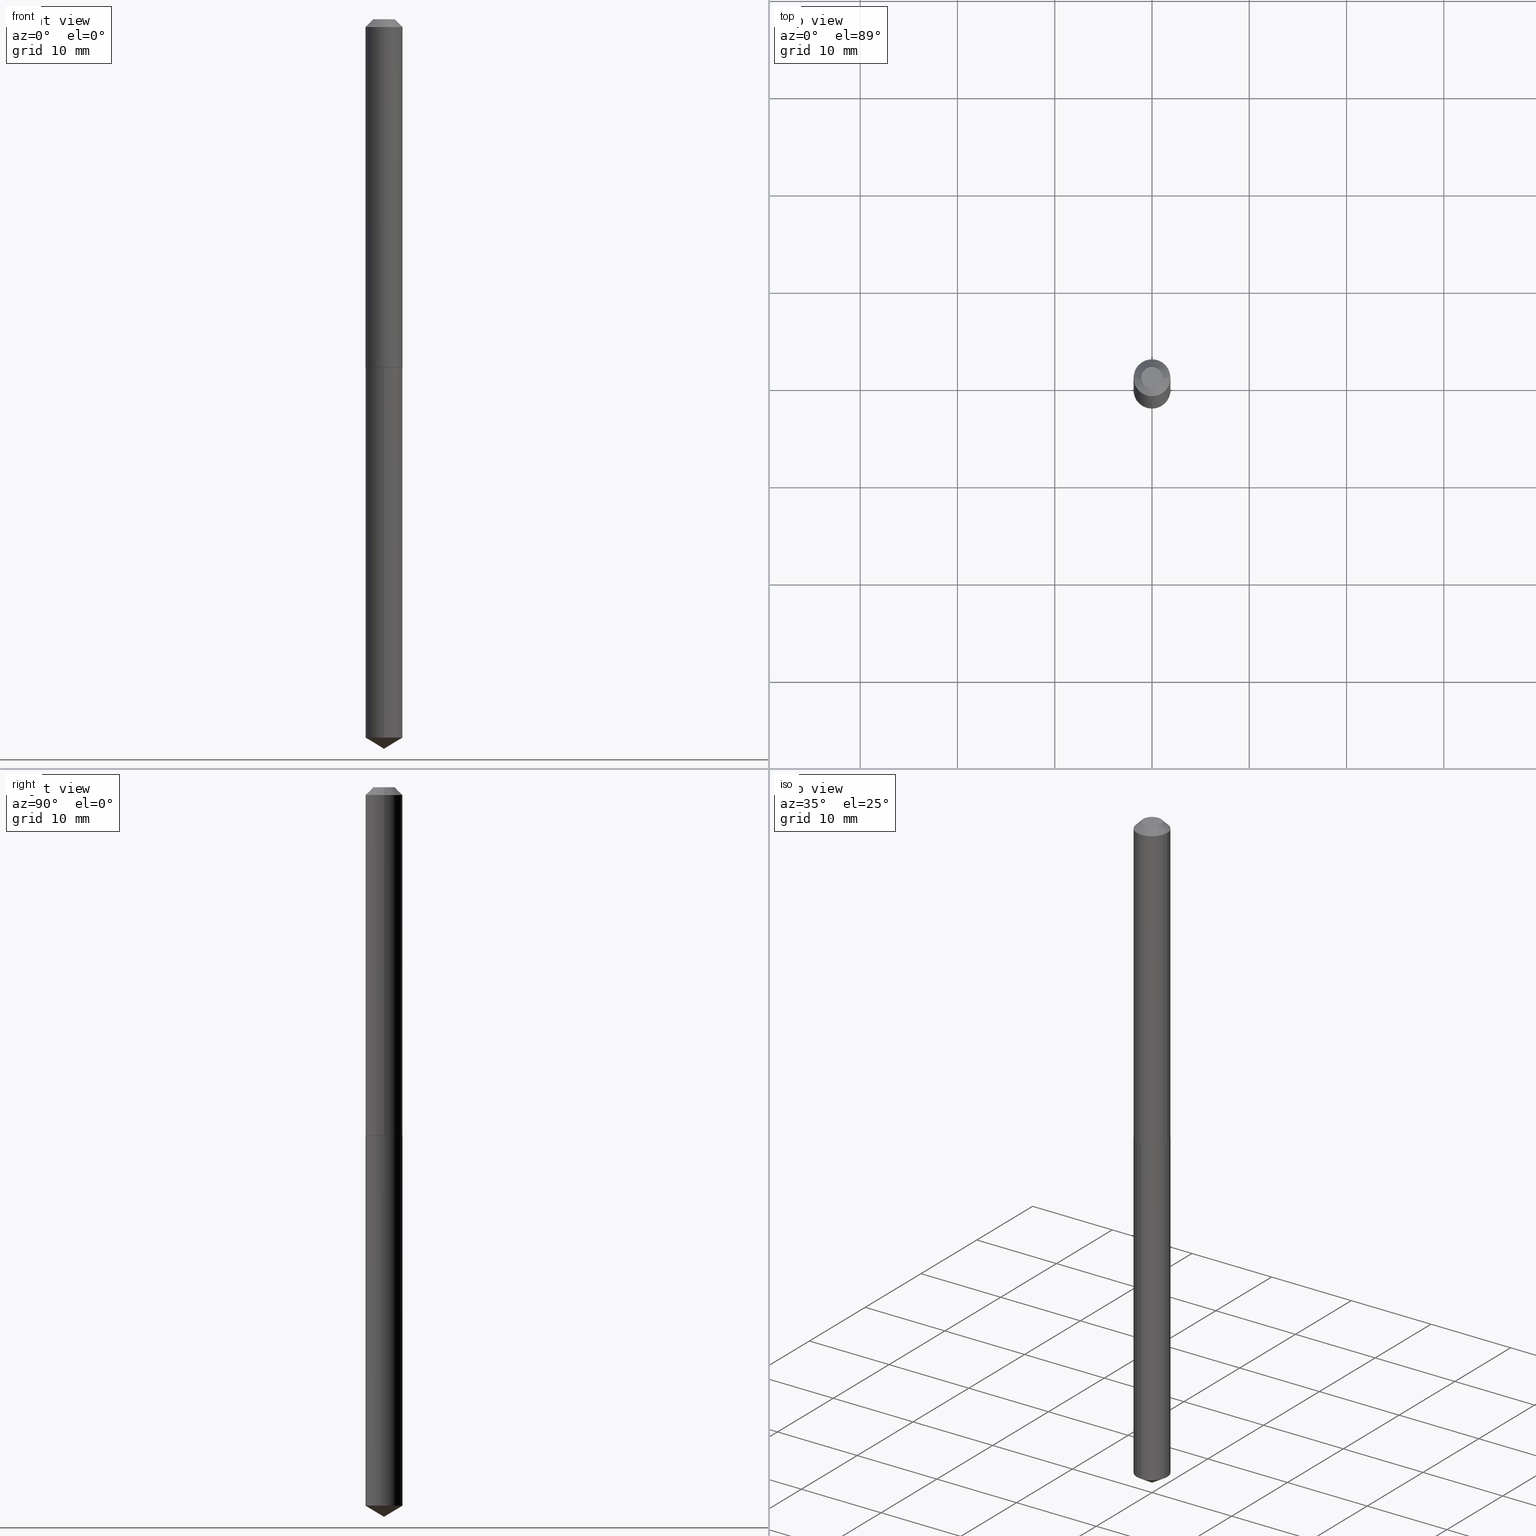
[diagram: canonical four-view strip — front | top / right | iso, engineering-drawing reading convention]
A machine part, canonical four-view strip (front | top / right | iso — engineering-drawing reading convention). The complete STEP part file that produces these views, byte-faithful:
ISO-10303-21;
HEADER;
FILE_DESCRIPTION (( 'STEP AP203' ),
    '1' );
FILE_NAME ('61074.STEP',
    '2024-04-23T03:15:50',
    ( '' ),
    ( '' ),
    'SwSTEP 2.0',
    'SolidWorks 2023',
    '' );
FILE_SCHEMA (( 'CONFIG_CONTROL_DESIGN' ));
ENDSEC;

DATA;
#1 = DIRECTION ( 'NONE',  ( -2.445468806185136597E-29, 3.491481338843145583E-15, 1.000000000000000000 ) ) ;
#2 = VECTOR ( 'NONE', #390, 39.37007874015748143 ) ;
#3 = DIRECTION ( 'NONE',  ( -2.445501550165769556E-29, 3.491434447599207546E-15, 1.000000000000000000 ) ) ;
#4 = FACE_OUTER_BOUND ( 'NONE', #228, .T. ) ;
#5 = CARTESIAN_POINT ( 'NONE',  ( 0.07480000000000018578, -5.441822814720925495E-15, -1.408999999999999586 ) ) ;
#6 = CONICAL_SURFACE ( 'NONE', #166, 65.52281426576737999, 1.029744258676647428 ) ;
#7 = CARTESIAN_POINT ( 'NONE',  ( 7.220984672048079038E-29, -1.030963982328759918E-14, -2.952799999999999869 ) ) ;
#8 = DIRECTION ( 'NONE',  ( -2.445468806185136597E-29, 3.491481338843145583E-15, 1.000000000000000000 ) ) ;
#9 = ADVANCED_FACE ( 'NONE', ( #96 ), #6, .T. ) ;
#10 = APPROVAL_STATUS ( 'not_yet_approved' ) ;
#11 = DIRECTION ( 'NONE',  ( -6.982962677686266711E-15, -1.000000000000000000, 3.468864327941649829E-15 ) ) ;
#12 = ORIENTED_EDGE ( 'NONE', *, *, #45, .T. ) ;
#13 = APPROVAL_DATE_TIME ( #223, #148 ) ;
#14 = ORIENTED_EDGE ( 'NONE', *, *, #270, .T. ) ;
#15 = ADVANCED_FACE ( 'NONE', ( #251 ), #277, .T. ) ;
#16 = CLOSED_SHELL ( 'NONE', ( #218, #259, #9, #366, #234 ) ) ;
#17 = CALENDAR_DATE ( 2024, 22, 4 ) ;
#18 = APPROVAL_PERSON_ORGANIZATION ( #100, #148, #283 ) ;
#19 = AXIS2_PLACEMENT_3D ( 'NONE', #356, #363, #93 ) ;
#20 = ORIENTED_EDGE ( 'NONE', *, *, #82, .F. ) ;
#21 = APPROVAL_ROLE ( '' ) ;
#22 = VERTEX_POINT ( 'NONE', #141 ) ;
#23 = FACE_OUTER_BOUND ( 'NONE', #317, .T. ) ;
#24 = EDGE_CURVE ( 'NONE', #134, #37, #386, .T. ) ;
#25 = DIRECTION ( 'NONE',  ( 1.000000000000000000, -6.982962677686271444E-15, 0.000000000000000000 ) ) ;
#26 = CONICAL_SURFACE ( 'NONE', #304, 0.07480000000000018578, 0.7853981633971067744 ) ;
#27 = CARTESIAN_POINT ( 'NONE',  ( 7.642090019328601786E-31, -1.091087918388490144E-16, -0.03125000000000020123 ) ) ;
#28 = DIRECTION ( 'NONE',  ( -0.7071067811865452413, 2.468850131082233000E-15, -0.7071067811865497932 ) ) ;
#29 = DIRECTION ( 'NONE',  ( 2.445468806185136597E-29, -3.491481338843145583E-15, -1.000000000000000000 ) ) ;
#30 = CC_DESIGN_SECURITY_CLASSIFICATION ( #288, ( #238 ) ) ;
#31 = CARTESIAN_POINT ( 'NONE',  ( 0.000000000000000000, 0.000000000000000000, 0.000000000000000000 ) ) ;
#32 = CARTESIAN_POINT ( 'NONE',  ( -0.04355000000000000537, 3.586624205326602835E-16, 2.388061258314161351E-19 ) ) ;
#33 = DESIGN_CONTEXT ( 'detailed design', #163, 'design' ) ;
#34 = PLANE ( 'NONE',  #333 ) ;
#35 = LOCAL_TIME ( 23, 15, 50.00000000000000000, #250 ) ;
#36 = FACE_OUTER_BOUND ( 'NONE', #307, .T. ) ;
#37 = VERTEX_POINT ( 'NONE', #353 ) ;
#38 = DIRECTION ( 'NONE',  ( -2.445501550165769556E-29, 3.491434447599207546E-15, 1.000000000000000000 ) ) ;
#39 = CARTESIAN_POINT ( 'NONE',  ( 3.446888282317949867E-29, -4.921242947099413409E-15, -1.409499999999999753 ) ) ;
#40 = EDGE_CURVE ( 'NONE', #209, #134, #263, .T. ) ;
#41 = ORIENTED_EDGE ( 'NONE', *, *, #132, .T. ) ;
#42 = ORIENTED_EDGE ( 'NONE', *, *, #268, .T. ) ;
#43 = DIRECTION ( 'NONE',  ( -6.982962677686265922E-15, -1.000000000000000000, 3.652203200085913934E-15 ) ) ;
#44 = ORIENTED_EDGE ( 'NONE', *, *, #364, .T. ) ;
#45 = EDGE_CURVE ( 'NONE', #344, #37, #171, .T. ) ;
#46 = PERSON_AND_ORGANIZATION ( #189, #232 ) ;
#47 = ORIENTED_EDGE ( 'NONE', *, *, #301, .F. ) ;
#48 = CIRCLE ( 'NONE', #173, 0.07480000000000018578 ) ;
#49 = PERSON_AND_ORGANIZATION_ROLE ( 'classification_officer' ) ;
#50 = CC_DESIGN_APPROVAL ( #215, ( #238 ) ) ;
#51 = ORIENTED_EDGE ( 'NONE', *, *, #270, .F. ) ;
#52 = DIRECTION ( 'NONE',  ( 1.000000000000000000, -6.982962677686271444E-15, 0.000000000000000000 ) ) ;
#53 = EDGE_CURVE ( 'NONE', #193, #134, #350, .T. ) ;
#54 = DIRECTION ( 'NONE',  ( -2.445468806185136597E-29, 3.491481338843145583E-15, 1.000000000000000000 ) ) ;
#55 = CARTESIAN_POINT ( 'NONE',  ( -0.07480000000000000537, 4.132168164520837491E-16, -0.03125000000000020123 ) ) ;
#56 = CARTESIAN_POINT ( 'NONE',  ( 7.642090019328601786E-31, -1.091087918388490144E-16, -0.03125000000000020123 ) ) ;
#57 = DIRECTION ( 'NONE',  ( -6.982962677686265922E-15, -1.000000000000000000, 3.652203200085913145E-15 ) ) ;
#58 = EDGE_CURVE ( 'NONE', #380, #140, #114, .T. ) ;
#59 = DIRECTION ( 'NONE',  ( -5.985567269335916825E-15, -0.8571673007021067825, 0.5150380749100631483 ) ) ;
#60 = VECTOR ( 'NONE', #180, 39.37007874015748143 ) ;
#61 = LINE ( 'NONE', #87, #369 ) ;
#62 = EDGE_CURVE ( 'NONE', #37, #134, #109, .T. ) ;
#63 = DIRECTION ( 'NONE',  ( 6.982962677686265922E-15, 1.000000000000000000, -3.491434447599207546E-15 ) ) ;
#64 = CYLINDRICAL_SURFACE ( 'NONE', #217, 0.07479999999999999150 ) ;
#65 = EDGE_LOOP ( 'NONE', ( #47, #338, #152 ) ) ;
#66 = DIRECTION ( 'NONE',  ( 1.000000000000000000, -6.982962677686265922E-15, 4.876176775795935232E-29 ) ) ;
#67 = PERSON_AND_ORGANIZATION_ROLE ( 'creator' ) ;
#68 = VERTEX_POINT ( 'NONE', #264 ) ;
#69 = DATE_AND_TIME ( #17, #71 ) ;
#70 = ORIENTED_EDGE ( 'NONE', *, *, #128, .T. ) ;
#71 = LOCAL_TIME ( 23, 15, 50.00000000000000000, #97 ) ;
#72 = VERTEX_POINT ( 'NONE', #385 ) ;
#73 = COORDINATED_UNIVERSAL_TIME_OFFSET ( 5, 0, .BEHIND. ) ;
#74 = ORIENTED_EDGE ( 'NONE', *, *, #125, .T. ) ;
#75 = PERSON_AND_ORGANIZATION_ROLE ( 'creator' ) ;
#76 = ORIENTED_EDGE ( 'NONE', *, *, #364, .F. ) ;
#77 = COORDINATED_UNIVERSAL_TIME_OFFSET ( 5, 0, .BEHIND. ) ;
#78 = AXIS2_PLACEMENT_3D ( 'NONE', #176, #1, #239 ) ;
#79 = CARTESIAN_POINT ( 'NONE',  ( 7.642090019328601786E-31, -1.091087918388490144E-16, -0.03125000000000020123 ) ) ;
#80 = DIRECTION ( 'NONE',  ( -2.445501550165769556E-29, 3.491434447599207546E-15, 1.000000000000000000 ) ) ;
#81 = DIRECTION ( 'NONE',  ( -2.445468806185136597E-29, 3.491481338843145583E-15, 1.000000000000000000 ) ) ;
#82 = EDGE_CURVE ( 'NONE', #22, #209, #319, .T. ) ;
#83 = AXIS2_PLACEMENT_3D ( 'NONE', #208, #187, #243 ) ;
#84 = DIRECTION ( 'NONE',  ( 1.000000000000000000, -6.982962677686261189E-15, 0.000000000000000000 ) ) ;
#85 = PRODUCT_RELATED_PRODUCT_CATEGORY ( 'detail', '', ( #354 ) ) ;
#86 = CYLINDRICAL_SURFACE ( 'NONE', #361, 0.07479999999999999150 ) ;
#87 = CARTESIAN_POINT ( 'NONE',  ( 0.07480000000000000537, -6.222740420721597243E-16, -0.03125000000000020123 ) ) ;
#88 = CIRCLE ( 'NONE', #102, 0.07430000000000035187 ) ;
#89 = AXIS2_PLACEMENT_3D ( 'NONE', #292, #81, #207 ) ;
#90 = CC_DESIGN_DATE_AND_TIME_ASSIGNMENT ( #376, #196, ( #153 ) ) ;
#91 = LINE ( 'NONE', #7, #318 ) ;
#92 = DIRECTION ( 'NONE',  ( -6.982962677686265922E-15, -1.000000000000000000, 0.000000000000000000 ) ) ;
#93 = DIRECTION ( 'NONE',  ( -1.000000000000000000, 6.982962677686265922E-15, -4.876176775795935793E-29 ) ) ;
#94 = CALENDAR_DATE ( 2024, 22, 4 ) ;
#95 = APPROVAL_ROLE ( '' ) ;
#96 = FACE_OUTER_BOUND ( 'NONE', #65, .T. ) ;
#97 = COORDINATED_UNIVERSAL_TIME_OFFSET ( 5, 0, .BEHIND. ) ;
#98 = EDGE_LOOP ( 'NONE', ( #291, #275, #190, #101 ) ) ;
#99 = EDGE_CURVE ( 'NONE', #344, #209, #48, .T. ) ;
#100 = PERSON_AND_ORGANIZATION ( #189, #232 ) ;
#101 = ORIENTED_EDGE ( 'NONE', *, *, #268, .F. ) ;
#102 = AXIS2_PLACEMENT_3D ( 'NONE', #170, #235, #84 ) ;
#103 = AXIS2_PLACEMENT_3D ( 'NONE', #216, #178, #92 ) ;
#104 = ORIENTED_EDGE ( 'NONE', *, *, #58, .F. ) ;
#105 = ORIENTED_EDGE ( 'NONE', *, *, #213, .T. ) ;
#106 = DATE_AND_TIME ( #381, #295 ) ;
#107 = DIRECTION ( 'NONE',  ( 1.000000000000000000, -6.982962677686271444E-15, 0.000000000000000000 ) ) ;
#108 = ADVANCED_FACE ( 'NONE', ( #111 ), #271, .T. ) ;
#109 = CIRCLE ( 'NONE', #368, 0.07480000000000000537 ) ;
#110 = CC_DESIGN_APPROVAL ( #148, ( #153 ) ) ;
#111 = FACE_OUTER_BOUND ( 'NONE', #98, .T. ) ;
#112 = MANIFOLD_SOLID_BREP ( 'Body-Move/Copy2[2]', #377 ) ;
#113 = CARTESIAN_POINT ( 'NONE',  ( 3.445665547914856505E-29, -4.919497206429991117E-15, -1.408999999999999586 ) ) ;
#114 = LINE ( 'NONE', #202, #144 ) ;
#115 = CARTESIAN_POINT ( 'NONE',  ( -5.223256082908982878E-16, -0.07480000000000491811, -1.409499999999999309 ) ) ;
#116 = AXIS2_PLACEMENT_3D ( 'NONE', #119, #8, #66 ) ;
#117 = PRODUCT_DEFINITION_SHAPE ( 'NONE', 'NONE',  #153 ) ;
#118 = LINE ( 'NONE', #305, #126 ) ;
#119 = CARTESIAN_POINT ( 'NONE',  ( 0.000000000000000000, 0.000000000000000000, 0.000000000000000000 ) ) ;
#120 = EDGE_LOOP ( 'NONE', ( #222, #336 ) ) ;
#121 = DIRECTION ( 'NONE',  ( -2.445468806185136597E-29, 3.491481338843145583E-15, 1.000000000000000000 ) ) ;
#122 = APPROVAL_PERSON_ORGANIZATION ( #139, #241, #21 ) ;
#123 = CARTESIAN_POINT ( 'NONE',  ( 3.446888282317949307E-29, -4.921242947099412620E-15, -1.409499999999999531 ) ) ;
#124 = DIRECTION ( 'NONE',  ( -2.445468806185136597E-29, 3.491481338843145583E-15, 1.000000000000000000 ) ) ;
#125 = EDGE_CURVE ( 'NONE', #209, #344, #347, .T. ) ;
#126 = VECTOR ( 'NONE', #362, 39.37007874015748143 ) ;
#127 = ORIENTED_EDGE ( 'NONE', *, *, #24, .T. ) ;
#128 = EDGE_CURVE ( 'NONE', #22, #312, #88, .T. ) ;
#129 = SHAPE_DEFINITION_REPRESENTATION ( #117, #357 ) ;
#130 = DIRECTION ( 'NONE',  ( 0.000000000000000000, 0.000000000000000000, 1.000000000000000000 ) ) ;
#131 = ORIENTED_EDGE ( 'NONE', *, *, #53, .T. ) ;
#132 = EDGE_CURVE ( 'NONE', #162, #140, #352, .T. ) ;
#133 = APPLICATION_PROTOCOL_DEFINITION ( 'international standard', 'config_control_design', 1994, #163 ) ;
#134 = VERTEX_POINT ( 'NONE', #323 ) ;
#135 = VECTOR ( 'NONE', #28, 39.37007874015748143 ) ;
#136 = VECTOR ( 'NONE', #269, 39.37007874015748143 ) ;
#137 = DIRECTION ( 'NONE',  ( 1.000000000000000000, -6.982962677686265922E-15, 4.876176775795935793E-29 ) ) ;
#138 = VERTEX_POINT ( 'NONE', #351 ) ;
#139 = PERSON_AND_ORGANIZATION ( #189, #232 ) ;
#140 = VERTEX_POINT ( 'NONE', #204 ) ;
#141 = CARTESIAN_POINT ( 'NONE',  ( -0.07430000000000035187, -4.390660467255545171E-15, -1.409499999999999753 ) ) ;
#142 = AXIS2_PLACEMENT_3D ( 'NONE', #147, #181, #212 ) ;
#143 = CARTESIAN_POINT ( 'NONE',  ( 7.642090019328601786E-31, -1.091087918388490144E-16, -0.03125000000000020123 ) ) ;
#144 = VECTOR ( 'NONE', #262, 39.37007874015748143 ) ;
#145 = DIRECTION ( 'NONE',  ( -2.445468806185136597E-29, 3.491481338843145583E-15, 1.000000000000000000 ) ) ;
#146 = DIMENSIONAL_EXPONENTS ( 1.000000000000000000, 0.000000000000000000, 0.000000000000000000, 0.000000000000000000, 0.000000000000000000, 0.000000000000000000, 0.000000000000000000 ) ;
#147 = CARTESIAN_POINT ( 'NONE',  ( 3.446888282317949307E-29, -4.921242947099412620E-15, -1.409499999999999531 ) ) ;
#148 = APPROVAL ( #10, 'UNSPECIFIED' ) ;
#149 = DIRECTION ( 'NONE',  ( 2.445501550165769276E-29, -3.491434447599207546E-15, -1.000000000000000000 ) ) ;
#150 = LINE ( 'NONE', #5, #60 ) ;
#151 = DIRECTION ( 'NONE',  ( 0.7071067811865452413, -7.319954787623248157E-15, -0.7071067811865497932 ) ) ;
#152 = ORIENTED_EDGE ( 'NONE', *, *, #309, .F. ) ;
#153 = PRODUCT_DEFINITION ( 'UNKNOWN', '', #238, #33 ) ;
#154 = PERSON_AND_ORGANIZATION ( #189, #232 ) ;
#155 = EDGE_CURVE ( 'NONE', #312, #22, #248, .T. ) ;
#156 = ORIENTED_EDGE ( 'NONE', *, *, #99, .T. ) ;
#157 = AXIS2_PLACEMENT_3D ( 'NONE', #56, #29, #382 ) ;
#158 = DIRECTION ( 'NONE',  ( -2.438088387897960049E-29, 3.491481338843145188E-15, 1.000000000000000000 ) ) ;
#159 = ORIENTED_EDGE ( 'NONE', *, *, #40, .T. ) ;
#160 = EDGE_CURVE ( 'NONE', #138, #193, #348, .T. ) ;
#161 = PERSON_AND_ORGANIZATION_ROLE ( 'design_owner' ) ;
#162 = VERTEX_POINT ( 'NONE', #115 ) ;
#163 = APPLICATION_CONTEXT ( 'configuration controlled 3d designs of mechanical parts and assemblies' ) ;
#164 = CALENDAR_DATE ( 2024, 22, 4 ) ;
#165 = ORIENTED_EDGE ( 'NONE', *, *, #200, .F. ) ;
#166 = AXIS2_PLACEMENT_3D ( 'NONE', #220, #280, #11 ) ;
#167 = CC_DESIGN_APPROVAL ( #241, ( #288 ) ) ;
#168 = APPROVAL_STATUS ( 'not_yet_approved' ) ;
#169 = ORIENTED_EDGE ( 'NONE', *, *, #45, .F. ) ;
#170 = CARTESIAN_POINT ( 'NONE',  ( 3.446888282317949867E-29, -4.921242947099413409E-15, -1.409499999999999753 ) ) ;
#171 = LINE ( 'NONE', #203, #2 ) ;
#172 = ADVANCED_FACE ( 'NONE', ( #23 ), #327, .T. ) ;
#173 = AXIS2_PLACEMENT_3D ( 'NONE', #324, #54, #52 ) ;
#174 = CONICAL_SURFACE ( 'NONE', #83, 65.52281426576737999, 1.029744258676647428 ) ;
#175 = CARTESIAN_POINT ( 'NONE',  ( 3.446888282317949307E-29, -4.921242947099412620E-15, -1.409499999999999531 ) ) ;
#176 = CARTESIAN_POINT ( 'NONE',  ( -5.839929314523175409E-48, 8.337871319499082469E-34, 2.388061258337334140E-19 ) ) ;
#177 = EDGE_CURVE ( 'NONE', #68, #162, #245, .T. ) ;
#178 = DIRECTION ( 'NONE',  ( -2.445501550165769556E-29, 3.491434447599207546E-15, 1.000000000000000000 ) ) ;
#179 = LOCAL_TIME ( 23, 15, 50.00000000000000000, #257 ) ;
#180 = DIRECTION ( 'NONE',  ( 0.7071067811863059882, -2.468850131079726789E-15, 0.7071067811867890462 ) ) ;
#181 = DIRECTION ( 'NONE',  ( -2.445501550165769556E-29, 3.491434447599207546E-15, 1.000000000000000000 ) ) ;
#182 = DIRECTION ( 'NONE',  ( -2.445501550165769556E-29, 3.491434447599207546E-15, 1.000000000000000000 ) ) ;
#183 = AXIS2_PLACEMENT_3D ( 'NONE', #27, #260, #388 ) ;
#184 = ORIENTED_EDGE ( 'NONE', *, *, #301, .T. ) ;
#185 = CIRCLE ( 'NONE', #273, 0.07479999999999999150 ) ;
#186 = ADVANCED_FACE ( 'NONE', ( #36 ), #240, .T. ) ;
#187 = DIRECTION ( 'NONE',  ( -2.445501550165769556E-29, 3.491434447599207546E-15, 1.000000000000000000 ) ) ;
#188 = CARTESIAN_POINT ( 'NONE',  ( 5.314859663486257775E-16, 0.07479999999998983296, -2.907855625696737611 ) ) ;
#189 = PERSON ( 'UNSPECIFIED', 'UNSPECIFIED', 'UNSPECIFIED', ('UNSPECIFIED'), ('UNSPECIFIED'), ('UNSPECIFIED') ) ;
#190 = ORIENTED_EDGE ( 'NONE', *, *, #99, .F. ) ;
#191 = APPROVAL_DATE_TIME ( #69, #215 ) ;
#192 = CC_DESIGN_DATE_AND_TIME_ASSIGNMENT ( #106, #201, ( #288 ) ) ;
#193 = VERTEX_POINT ( 'NONE', #32 ) ;
#194 = PLANE ( 'NONE',  #206 ) ;
#195 = EDGE_LOOP ( 'NONE', ( #281, #74, #12, #310 ) ) ;
#196 = DATE_TIME_ROLE ( 'creation_date' ) ;
#197 = EDGE_LOOP ( 'NONE', ( #44, #371, #256, #360 ) ) ;
#198 = ORIENTED_EDGE ( 'NONE', *, *, #160, .T. ) ;
#199 = AXIS2_PLACEMENT_3D ( 'NONE', #293, #145, #25 ) ;
#200 = EDGE_CURVE ( 'NONE', #138, #37, #61, .T. ) ;
#201 = DATE_TIME_ROLE ( 'classification_date' ) ;
#202 = CARTESIAN_POINT ( 'NONE',  ( 5.314859663485892927E-16, 0.07479999999999507876, -1.409499999999999753 ) ) ;
#203 = CARTESIAN_POINT ( 'NONE',  ( 0.07480000000000010252, -5.223256082909333921E-16, 3.647380228295364368E-30 ) ) ;
#204 = CARTESIAN_POINT ( 'NONE',  ( 5.314859663486262705E-16, 0.07479999999999509264, -1.409499999999999753 ) ) ;
#205 = UNCERTAINTY_MEASURE_WITH_UNIT (LENGTH_MEASURE( 1.000000000000000082E-05 ), #335, 'distance_accuracy_value', 'NONE');
#206 = AXIS2_PLACEMENT_3D ( 'NONE', #39, #158, #137 ) ;
#207 = DIRECTION ( 'NONE',  ( 1.000000000000000000, -6.982962677686261189E-15, 0.000000000000000000 ) ) ;
#208 = CARTESIAN_POINT ( 'NONE',  ( -8.905855776451474742E-28, 1.271484753879997813E-13, 36.41727874015747801 ) ) ;
#209 = VERTEX_POINT ( 'NONE', #359 ) ;
#210 = FACE_OUTER_BOUND ( 'NONE', #374, .T. ) ;
#211 = EDGE_LOOP ( 'NONE', ( #41, #105 ) ) ;
#212 = DIRECTION ( 'NONE',  ( -6.982962677686265922E-15, -1.000000000000000000, 3.652203200085913145E-15 ) ) ;
#213 = EDGE_CURVE ( 'NONE', #140, #162, #387, .T. ) ;
#214 = CARTESIAN_POINT ( 'NONE',  ( 0.07430000000000035187, -5.440077074051504780E-15, -1.409499999999999753 ) ) ;
#215 = APPROVAL ( #373, 'UNSPECIFIED' ) ;
#216 = CARTESIAN_POINT ( 'NONE',  ( 7.111119287658923798E-29, -1.015265339341106768E-14, -2.907855625696737611 ) ) ;
#217 = AXIS2_PLACEMENT_3D ( 'NONE', #334, #3, #43 ) ;
#218 = ADVANCED_FACE ( 'NONE', ( #302 ), #86, .T. ) ;
#219 = FACE_OUTER_BOUND ( 'NONE', #258, .T. ) ;
#220 = CARTESIAN_POINT ( 'NONE',  ( -8.905855776451474742E-28, 1.271484753879997813E-13, 36.41727874015747801 ) ) ;
#221 = FACE_OUTER_BOUND ( 'NONE', #120, .T. ) ;
#222 = ORIENTED_EDGE ( 'NONE', *, *, #155, .F. ) ;
#223 = DATE_AND_TIME ( #164, #35 ) ;
#224 = ORIENTED_EDGE ( 'NONE', *, *, #160, .F. ) ;
#225 = VECTOR ( 'NONE', #231, 39.37007874015748143 ) ;
#226 = CIRCLE ( 'NONE', #378, 0.04355000000000000537 ) ;
#227 = APPLICATION_PROTOCOL_DEFINITION ( 'international standard', 'config_control_design', 1994, #367 ) ;
#228 = EDGE_LOOP ( 'NONE', ( #14, #198 ) ) ;
#229 = ORIENTED_EDGE ( 'NONE', *, *, #200, .T. ) ;
#230 = PERSON_AND_ORGANIZATION_ROLE ( 'design_supplier' ) ;
#231 = DIRECTION ( 'NONE',  ( -0.7071067811863059882, 7.493145998869481680E-15, 0.7071067811867890462 ) ) ;
#232 = ORGANIZATION ( 'UNSPECIFIED', 'UNSPECIFIED', '' ) ;
#233 = CARTESIAN_POINT ( 'NONE',  ( -0.07480000000000010252, 5.314859663485556675E-16, -3.679363447510674285E-30 ) ) ;
#234 = ADVANCED_FACE ( 'NONE', ( #274 ), #34, .F. ) ;
#235 = DIRECTION ( 'NONE',  ( -2.445468806185136597E-29, 3.491481338843145583E-15, 1.000000000000000000 ) ) ;
#236 = DIRECTION ( 'NONE',  ( 1.000000000000000000, -6.982962677686266711E-15, 0.000000000000000000 ) ) ;
#237 = APPROVAL_PERSON_ORGANIZATION ( #286, #215, #95 ) ;
#238 = PRODUCT_DEFINITION_FORMATION_WITH_SPECIFIED_SOURCE ( 'ANY', '', #354, .NOT_KNOWN. ) ;
#239 = DIRECTION ( 'NONE',  ( 1.000000000000000000, -6.982962677686265922E-15, 4.876178871365119534E-29 ) ) ;
#240 = CYLINDRICAL_SURFACE ( 'NONE', #116, 0.07480000000000010252 ) ;
#241 = APPROVAL ( #168, 'UNSPECIFIED' ) ;
#242 = CARTESIAN_POINT ( 'NONE',  ( -5.223256082908981892E-16, -0.07480000000000491811, -1.409499999999999309 ) ) ;
#243 = DIRECTION ( 'NONE',  ( -6.982962677686266711E-15, -1.000000000000000000, 3.468864327941649829E-15 ) ) ;
#244 = LOCAL_TIME ( 23, 15, 50.00000000000000000, #73 ) ;
#245 = LINE ( 'NONE', #242, #136 ) ;
#246 = DIRECTION ( 'NONE',  ( 1.000000000000000000, -6.982962677686265922E-15, 4.876176775795935232E-29 ) ) ;
#247 = LENGTH_MEASURE_WITH_UNIT ( LENGTH_MEASURE( 0.02539999999999999897 ), #311 );
#248 = CIRCLE ( 'NONE', #89, 0.07430000000000035187 ) ;
#249 = ORIENTED_EDGE ( 'NONE', *, *, #125, .F. ) ;
#250 = COORDINATED_UNIVERSAL_TIME_OFFSET ( 5, 0, .BEHIND. ) ;
#251 = FACE_OUTER_BOUND ( 'NONE', #375, .T. ) ;
#252 = EDGE_LOOP ( 'NONE', ( #104, #254, #315, #340 ) ) ;
#253 = CALENDAR_DATE ( 2024, 22, 4 ) ;
#254 = ORIENTED_EDGE ( 'NONE', *, *, #309, .T. ) ;
#255 = PERSON_AND_ORGANIZATION ( #189, #232 ) ;
#256 = ORIENTED_EDGE ( 'NONE', *, *, #132, .F. ) ;
#257 = COORDINATED_UNIVERSAL_TIME_OFFSET ( 5, 0, .BEHIND. ) ;
#258 = EDGE_LOOP ( 'NONE', ( #20, #70, #42, #249 ) ) ;
#259 = ADVANCED_FACE ( 'NONE', ( #210 ), #174, .T. ) ;
#260 = DIRECTION ( 'NONE',  ( -2.445468806185136597E-29, 3.491481338843145583E-15, 1.000000000000000000 ) ) ;
#261 = AXIS2_PLACEMENT_3D ( 'NONE', #31, #121, #246 ) ;
#262 = DIRECTION ( 'NONE',  ( -2.445501550165769556E-29, 3.491434447599207546E-15, 1.000000000000000000 ) ) ;
#263 = LINE ( 'NONE', #233, #294 ) ;
#264 = CARTESIAN_POINT ( 'NONE',  ( -5.223256082908615071E-16, -0.07480000000001012228, -2.907855625696737611 ) ) ;
#265 = AXIS2_PLACEMENT_3D ( 'NONE', #175, #80, #57 ) ;
#266 = CARTESIAN_POINT ( 'NONE',  ( 0.07480000000000018578, -5.441822814720925495E-15, -1.408999999999999586 ) ) ;
#267 = DIRECTION ( 'NONE',  ( -6.982962677686265922E-15, -1.000000000000000000, 3.652203200085913934E-15 ) ) ;
#268 = EDGE_CURVE ( 'NONE', #312, #344, #150, .T. ) ;
#269 = DIRECTION ( 'NONE',  ( -2.445501550165769556E-29, 3.491434447599207546E-15, 1.000000000000000000 ) ) ;
#270 = EDGE_CURVE ( 'NONE', #193, #138, #226, .T. ) ;
#271 = CONICAL_SURFACE ( 'NONE', #199, 0.07480000000000018578, 0.7853981633971067744 ) ;
#272 = DIRECTION ( 'NONE',  ( 1.000000000000000000, -6.982962677686265922E-15, 4.876178871365119534E-29 ) ) ;
#273 = AXIS2_PLACEMENT_3D ( 'NONE', #329, #38, #365 ) ;
#274 = FACE_OUTER_BOUND ( 'NONE', #211, .T. ) ;
#275 = ORIENTED_EDGE ( 'NONE', *, *, #82, .T. ) ;
#276 = DIRECTION ( 'NONE',  ( 1.000000000000000000, 0.000000000000000000, 0.000000000000000000 ) ) ;
#277 = CONICAL_SURFACE ( 'NONE', #332, 0.07480000000000000537, 0.7853981633974450594 ) ;
#278 = CC_DESIGN_PERSON_AND_ORGANIZATION_ASSIGNMENT ( #154, #161, ( #354 ) ) ;
#279 = CIRCLE ( 'NONE', #103, 0.07479999999999999150 ) ;
#280 = DIRECTION ( 'NONE',  ( -2.445501550165769556E-29, 3.491434447599207546E-15, 1.000000000000000000 ) ) ;
#281 = ORIENTED_EDGE ( 'NONE', *, *, #40, .F. ) ;
#282 = ADVANCED_FACE ( 'NONE', ( #303 ), #325, .T. ) ;
#283 = APPROVAL_ROLE ( '' ) ;
#284 = ORIENTED_EDGE ( 'NONE', *, *, #306, .F. ) ;
#285 = CC_DESIGN_PERSON_AND_ORGANIZATION_ASSIGNMENT ( #255, #67, ( #238 ) ) ;
#286 = PERSON_AND_ORGANIZATION ( #189, #232 ) ;
#287 = ORIENTED_EDGE ( 'NONE', *, *, #62, .T. ) ;
#288 = SECURITY_CLASSIFICATION ( '', '', #345 ) ;
#289 = DATE_AND_TIME ( #94, #179 ) ;
#290 = PERSON_AND_ORGANIZATION ( #189, #232 ) ;
#291 = ORIENTED_EDGE ( 'NONE', *, *, #155, .T. ) ;
#292 = CARTESIAN_POINT ( 'NONE',  ( 3.446888282317949867E-29, -4.921242947099413409E-15, -1.409499999999999753 ) ) ;
#293 = CARTESIAN_POINT ( 'NONE',  ( 3.445665547914856505E-29, -4.919497206429991117E-15, -1.408999999999999586 ) ) ;
#294 = VECTOR ( 'NONE', #321, 39.37007874015748143 ) ;
#295 = LOCAL_TIME ( 23, 15, 50.00000000000000000, #77 ) ;
#296 = DIRECTION ( 'NONE',  ( 2.445468806185136597E-29, -3.491481338843145583E-15, -1.000000000000000000 ) ) ;
#297 = DIRECTION ( 'NONE',  ( -2.445468806185136597E-29, 3.491481338843145583E-15, 1.000000000000000000 ) ) ;
#298 = AXIS2_PLACEMENT_3D ( 'NONE', #337, #130, #276 ) ;
#299 = PLANE ( 'NONE',  #19 ) ;
#300 = CARTESIAN_POINT ( 'NONE',  ( -5.839929314523175409E-48, 8.337871319499082469E-34, 2.388061258337334140E-19 ) ) ;
#301 = EDGE_CURVE ( 'NONE', #72, #380, #118, .T. ) ;
#302 = FACE_OUTER_BOUND ( 'NONE', #197, .T. ) ;
#303 = FACE_OUTER_BOUND ( 'NONE', #195, .T. ) ;
#304 = AXIS2_PLACEMENT_3D ( 'NONE', #341, #339, #316 ) ;
#305 = CARTESIAN_POINT ( 'NONE',  ( 7.221077786737843388E-29, -1.030950763687093844E-14, -2.952799999999999869 ) ) ;
#306 = EDGE_CURVE ( 'NONE', #72, #68, #91, .T. ) ;
#307 = EDGE_LOOP ( 'NONE', ( #156, #159, #342, #169 ) ) ;
#308 = PERSON_AND_ORGANIZATION ( #189, #232 ) ;
#309 = EDGE_CURVE ( 'NONE', #380, #68, #185, .T. ) ;
#310 = ORIENTED_EDGE ( 'NONE', *, *, #24, .F. ) ;
#311 =( LENGTH_UNIT ( ) NAMED_UNIT ( * ) SI_UNIT ( $, .METRE. ) );
#312 = VERTEX_POINT ( 'NONE', #214 ) ;
#313 = CC_DESIGN_PERSON_AND_ORGANIZATION_ASSIGNMENT ( #46, #75, ( #153 ) ) ;
#314 =( NAMED_UNIT ( * ) SI_UNIT ( $, .STERADIAN. ) SOLID_ANGLE_UNIT ( ) );
#315 = ORIENTED_EDGE ( 'NONE', *, *, #177, .T. ) ;
#316 = DIRECTION ( 'NONE',  ( 1.000000000000000000, -6.982962677686271444E-15, 0.000000000000000000 ) ) ;
#317 = EDGE_LOOP ( 'NONE', ( #224, #229, #287, #379 ) ) ;
#318 = VECTOR ( 'NONE', #59, 39.37007874015748854 ) ;
#319 = LINE ( 'NONE', #320, #225 ) ;
#320 = CARTESIAN_POINT ( 'NONE',  ( -0.07480000000000018578, -4.388011240081434759E-15, -1.408999999999999586 ) ) ;
#321 = DIRECTION ( 'NONE',  ( -2.445468806185136877E-29, 3.491481338843145188E-15, 1.000000000000000000 ) ) ;
#322 =( GEOMETRIC_REPRESENTATION_CONTEXT ( 3 ) GLOBAL_UNCERTAINTY_ASSIGNED_CONTEXT ( ( #205 ) ) GLOBAL_UNIT_ASSIGNED_CONTEXT ( ( #335, #370, #314 ) ) REPRESENTATION_CONTEXT ( 'NONE', 'WORKASPACE' ) );
#323 = CARTESIAN_POINT ( 'NONE',  ( -0.07480000000000000537, -1.982817032785863356E-15, -0.03125000000000020123 ) ) ;
#324 = CARTESIAN_POINT ( 'NONE',  ( 3.445665547914856505E-29, -4.919497206429991117E-15, -1.408999999999999586 ) ) ;
#325 = CYLINDRICAL_SURFACE ( 'NONE', #261, 0.07480000000000010252 ) ;
#326 = AXIS2_PLACEMENT_3D ( 'NONE', #113, #297, #107 ) ;
#327 = CONICAL_SURFACE ( 'NONE', #157, 0.07480000000000000537, 0.7853981633974450594 ) ;
#328 = CARTESIAN_POINT ( 'NONE',  ( 3.446888282317949307E-29, -4.921242947099412620E-15, -1.409499999999999531 ) ) ;
#329 = CARTESIAN_POINT ( 'NONE',  ( 7.111119287658923798E-29, -1.015265339341106768E-14, -2.907855625696737611 ) ) ;
#330 = FACE_OUTER_BOUND ( 'NONE', #252, .T. ) ;
#331 = ADVANCED_FACE ( 'NONE', ( #4 ), #299, .F. ) ;
#332 = AXIS2_PLACEMENT_3D ( 'NONE', #79, #296, #346 ) ;
#333 = AXIS2_PLACEMENT_3D ( 'NONE', #123, #149, #63 ) ;
#334 = CARTESIAN_POINT ( 'NONE',  ( 3.446888282317949307E-29, -4.921242947099412620E-15, -1.409499999999999531 ) ) ;
#335 =( CONVERSION_BASED_UNIT ( 'INCH', #247 ) LENGTH_UNIT ( ) NAMED_UNIT ( #146 ) );
#336 = ORIENTED_EDGE ( 'NONE', *, *, #128, .F. ) ;
#337 = CARTESIAN_POINT ( 'NONE',  ( 0.000000000000000000, 0.000000000000000000, 0.000000000000000000 ) ) ;
#338 = ORIENTED_EDGE ( 'NONE', *, *, #306, .T. ) ;
#339 = DIRECTION ( 'NONE',  ( -2.445468806185136597E-29, 3.491481338843145583E-15, 1.000000000000000000 ) ) ;
#340 = ORIENTED_EDGE ( 'NONE', *, *, #213, .F. ) ;
#341 = CARTESIAN_POINT ( 'NONE',  ( 3.445665547914856505E-29, -4.919497206429991117E-15, -1.408999999999999586 ) ) ;
#342 = ORIENTED_EDGE ( 'NONE', *, *, #62, .F. ) ;
#343 = MECHANICAL_CONTEXT ( 'NONE', #367, 'mechanical' ) ;
#344 = VERTEX_POINT ( 'NONE', #266 ) ;
#345 = SECURITY_CLASSIFICATION_LEVEL ( 'unclassified' ) ;
#346 = DIRECTION ( 'NONE',  ( -1.000000000000000000, 6.982962677686266711E-15, 0.000000000000000000 ) ) ;
#347 = CIRCLE ( 'NONE', #326, 0.07480000000000018578 ) ;
#348 = CIRCLE ( 'NONE', #78, 0.04355000000000000537 ) ;
#349 = DIRECTION ( 'NONE',  ( -2.445468806185136597E-29, 3.491481338843145583E-15, 1.000000000000000000 ) ) ;
#350 = LINE ( 'NONE', #55, #135 ) ;
#351 = CARTESIAN_POINT ( 'NONE',  ( 0.04355000000000000537, -4.605243649375549933E-16, 2.388061258364063159E-19 ) ) ;
#352 = CIRCLE ( 'NONE', #265, 0.07480000000000000537 ) ;
#353 = CARTESIAN_POINT ( 'NONE',  ( 0.07480000000000000537, -6.314344001297818025E-16, -0.03125000000000020123 ) ) ;
#354 = PRODUCT ( '61074', '61074', '', ( #343 ) ) ;
#355 = APPROVAL_DATE_TIME ( #289, #241 ) ;
#356 = CARTESIAN_POINT ( 'NONE',  ( -2.919964657261587705E-48, 4.168935659749541235E-34, 1.194030629168667070E-19 ) ) ;
#357 = ADVANCED_BREP_SHAPE_REPRESENTATION ( '61074', ( #384, #112, #298 ), #322 ) ;
#358 = CC_DESIGN_PERSON_AND_ORGANIZATION_ASSIGNMENT ( #290, #49, ( #288 ) ) ;
#359 = CARTESIAN_POINT ( 'NONE',  ( -0.07480000000000018578, -4.388011240081434759E-15, -1.408999999999999586 ) ) ;
#360 = ORIENTED_EDGE ( 'NONE', *, *, #177, .F. ) ;
#361 = AXIS2_PLACEMENT_3D ( 'NONE', #328, #182, #267 ) ;
#362 = DIRECTION ( 'NONE',  ( 6.090539988449753981E-15, 0.8571673007021103352, 0.5150380749100572642 ) ) ;
#363 = DIRECTION ( 'NONE',  ( 2.438088387897960049E-29, -3.491481338843145188E-15, -1.000000000000000000 ) ) ;
#364 = EDGE_CURVE ( 'NONE', #68, #380, #279, .T. ) ;
#365 = DIRECTION ( 'NONE',  ( -6.982962677686265922E-15, -1.000000000000000000, 0.000000000000000000 ) ) ;
#366 = ADVANCED_FACE ( 'NONE', ( #330 ), #64, .T. ) ;
#367 = APPLICATION_CONTEXT ( 'configuration controlled 3d designs of mechanical parts and assemblies' ) ;
#368 = AXIS2_PLACEMENT_3D ( 'NONE', #143, #349, #236 ) ;
#369 = VECTOR ( 'NONE', #151, 39.37007874015748143 ) ;
#370 =( NAMED_UNIT ( * ) PLANE_ANGLE_UNIT ( ) SI_UNIT ( $, .RADIAN. ) );
#371 = ORIENTED_EDGE ( 'NONE', *, *, #58, .T. ) ;
#372 = ADVANCED_FACE ( 'NONE', ( #219 ), #26, .T. ) ;
#373 = APPROVAL_STATUS ( 'not_yet_approved' ) ;
#374 = EDGE_LOOP ( 'NONE', ( #284, #184, #76 ) ) ;
#375 = EDGE_LOOP ( 'NONE', ( #165, #51, #131, #127 ) ) ;
#376 = DATE_AND_TIME ( #253, #244 ) ;
#377 = CLOSED_SHELL ( 'NONE', ( #172, #186, #108, #389, #372, #282, #15, #331 ) ) ;
#378 = AXIS2_PLACEMENT_3D ( 'NONE', #300, #124, #272 ) ;
#379 = ORIENTED_EDGE ( 'NONE', *, *, #53, .F. ) ;
#380 = VERTEX_POINT ( 'NONE', #188 ) ;
#381 = CALENDAR_DATE ( 2024, 22, 4 ) ;
#382 = DIRECTION ( 'NONE',  ( -1.000000000000000000, 6.982962677686266711E-15, 0.000000000000000000 ) ) ;
#383 = CC_DESIGN_PERSON_AND_ORGANIZATION_ASSIGNMENT ( #308, #230, ( #238 ) ) ;
#384 = MANIFOLD_SOLID_BREP ( 'Body-Move/Copy2[1]', #16 ) ;
#385 = CARTESIAN_POINT ( 'NONE',  ( 7.221076977329483295E-29, -1.030950763687093844E-14, -2.952799999999999869 ) ) ;
#386 = CIRCLE ( 'NONE', #183, 0.07480000000000000537 ) ;
#387 = CIRCLE ( 'NONE', #142, 0.07480000000000000537 ) ;
#388 = DIRECTION ( 'NONE',  ( 1.000000000000000000, -6.982962677686266711E-15, 0.000000000000000000 ) ) ;
#389 = ADVANCED_FACE ( 'NONE', ( #221 ), #194, .F. ) ;
#390 = DIRECTION ( 'NONE',  ( -2.445468806185136877E-29, 3.491481338843145188E-15, 1.000000000000000000 ) ) ;
ENDSEC;
END-ISO-10303-21;
